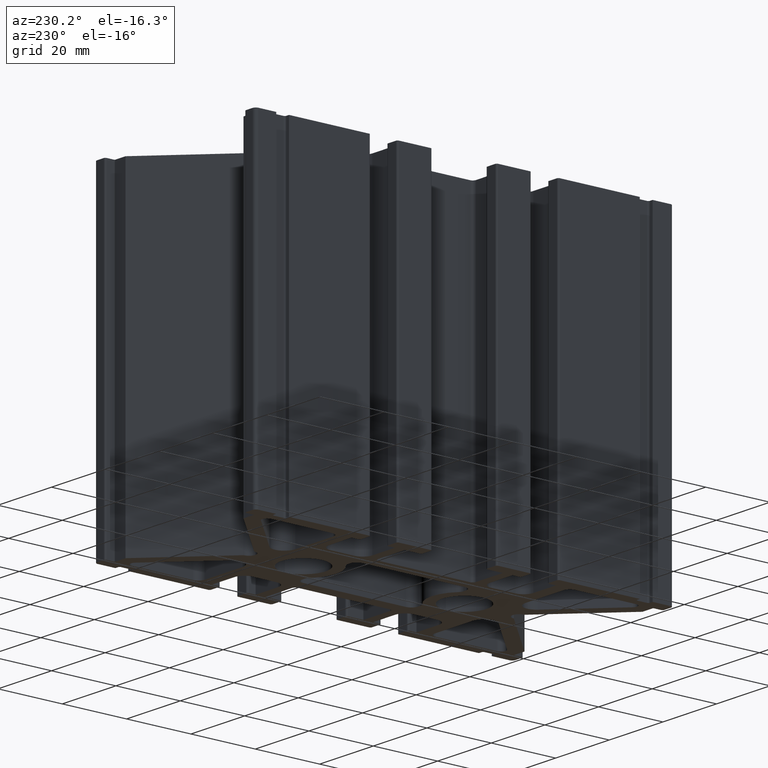
[diagram: clean part render]
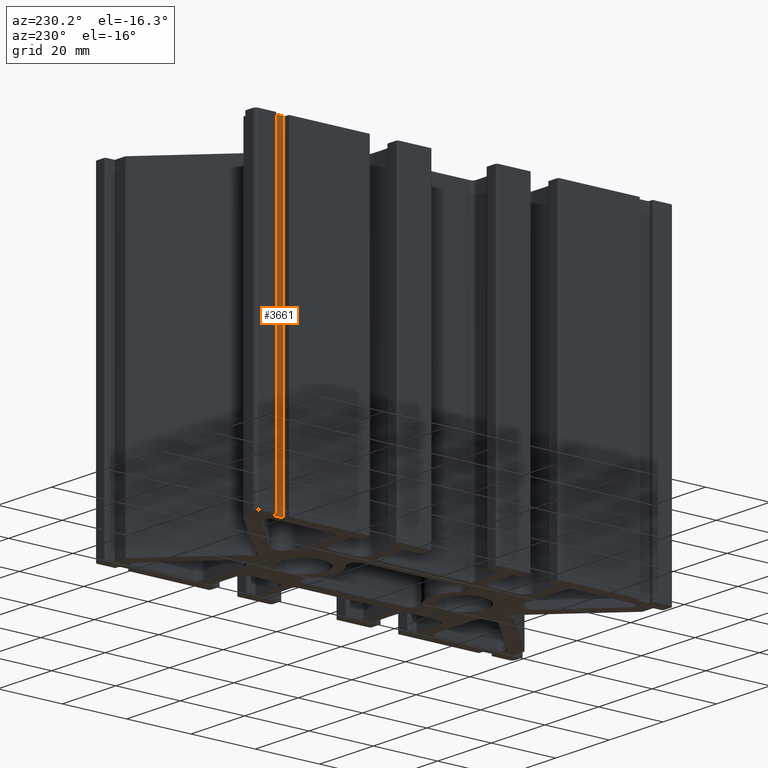
[diagram: same view with one face highlighted and labeled with its STEP entity id]
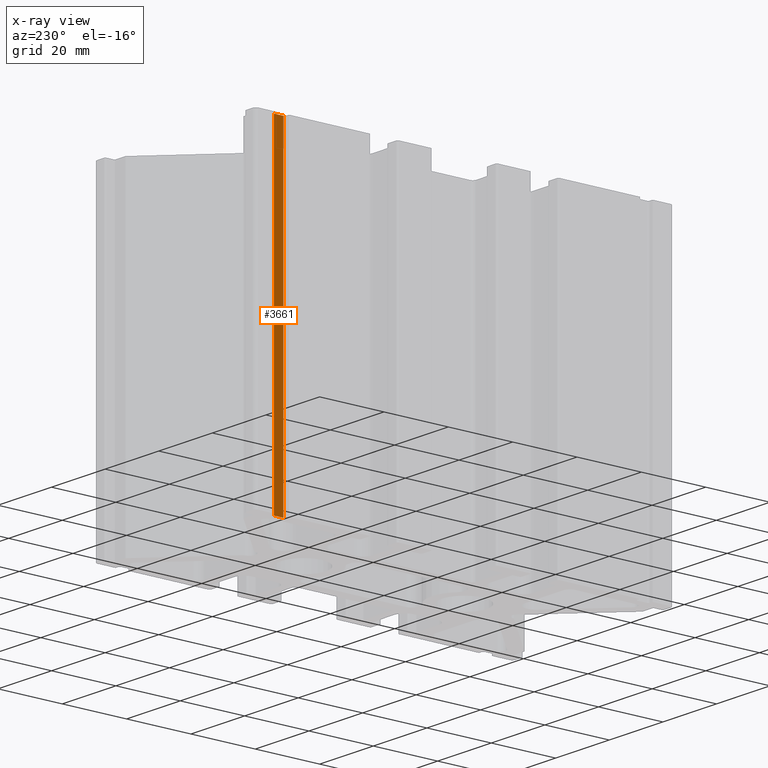
[diagram: x-ray of the same camera — body ghosted, the highlighted face saturated]
A machine part, auxiliary view. The second image highlights one B-rep face of the part: STEP entity #3661.
The next image is the same camera in x-ray: the body ghosted, the highlighted face saturated — about 0% of this face is hidden behind the body in this view.
In plain terms, the highlighted planar face has unit normal (-1, 0, 0).
Its self-contained STEP definition (entity closure, byte-faithful):
#53=PLANE('',#3980);
#189=FACE_OUTER_BOUND('',#384,.T.);
#384=EDGE_LOOP('',(#2803,#2804,#2805,#2806));
#771=LINE('',#5540,#1169);
#867=LINE('',#5843,#1265);
#868=LINE('',#5846,#1266);
#869=LINE('',#5847,#1267);
#1169=VECTOR('',#4444,10.);
#1265=VECTOR('',#4670,10.);
#1266=VECTOR('',#4673,10.);
#1267=VECTOR('',#4674,10.);
#1577=VERTEX_POINT('',#5537);
#1578=VERTEX_POINT('',#5539);
#1720=VERTEX_POINT('',#5841);
#1721=VERTEX_POINT('',#5845);
#1991=EDGE_CURVE('',#1577,#1578,#771,.T.);
#2143=EDGE_CURVE('',#1577,#1720,#867,.T.);
#2144=EDGE_CURVE('',#1721,#1720,#868,.T.);
#2145=EDGE_CURVE('',#1578,#1721,#869,.T.);
#2803=ORIENTED_EDGE('',*,*,#2143,.T.);
#2804=ORIENTED_EDGE('',*,*,#2144,.F.);
#2805=ORIENTED_EDGE('',*,*,#2145,.F.);
#2806=ORIENTED_EDGE('',*,*,#1991,.F.);
#3661=ADVANCED_FACE('',(#189),#53,.T.);
#3980=AXIS2_PLACEMENT_3D('',#5844,#4671,#4672);
#4444=DIRECTION('',(0.,1.,0.));
#4670=DIRECTION('',(0.,0.,1.));
#4671=DIRECTION('center_axis',(-1.,0.,0.));
#4672=DIRECTION('ref_axis',(0.,-1.,0.));
#4673=DIRECTION('',(0.,-1.,0.));
#4674=DIRECTION('',(0.,0.,1.));
#5537=CARTESIAN_POINT('',(-28.5000000000036,55.0000000000005,-50.));
#5539=CARTESIAN_POINT('',(-28.5000000000036,58.0000000000008,-50.));
#5540=CARTESIAN_POINT('',(-28.5000000000036,58.0000000000008,-50.));
#5841=CARTESIAN_POINT('',(-28.5000000000036,55.0000000000005,50.));
#5843=CARTESIAN_POINT('',(-28.5000000000036,55.0000000000005,0.));
#5844=CARTESIAN_POINT('Origin',(-28.5000000000036,58.0000000000008,0.));
#5845=CARTESIAN_POINT('',(-28.5000000000036,58.0000000000008,50.));
#5846=CARTESIAN_POINT('',(-28.5000000000036,58.0000000000008,50.));
#5847=CARTESIAN_POINT('',(-28.5000000000036,58.0000000000008,0.));